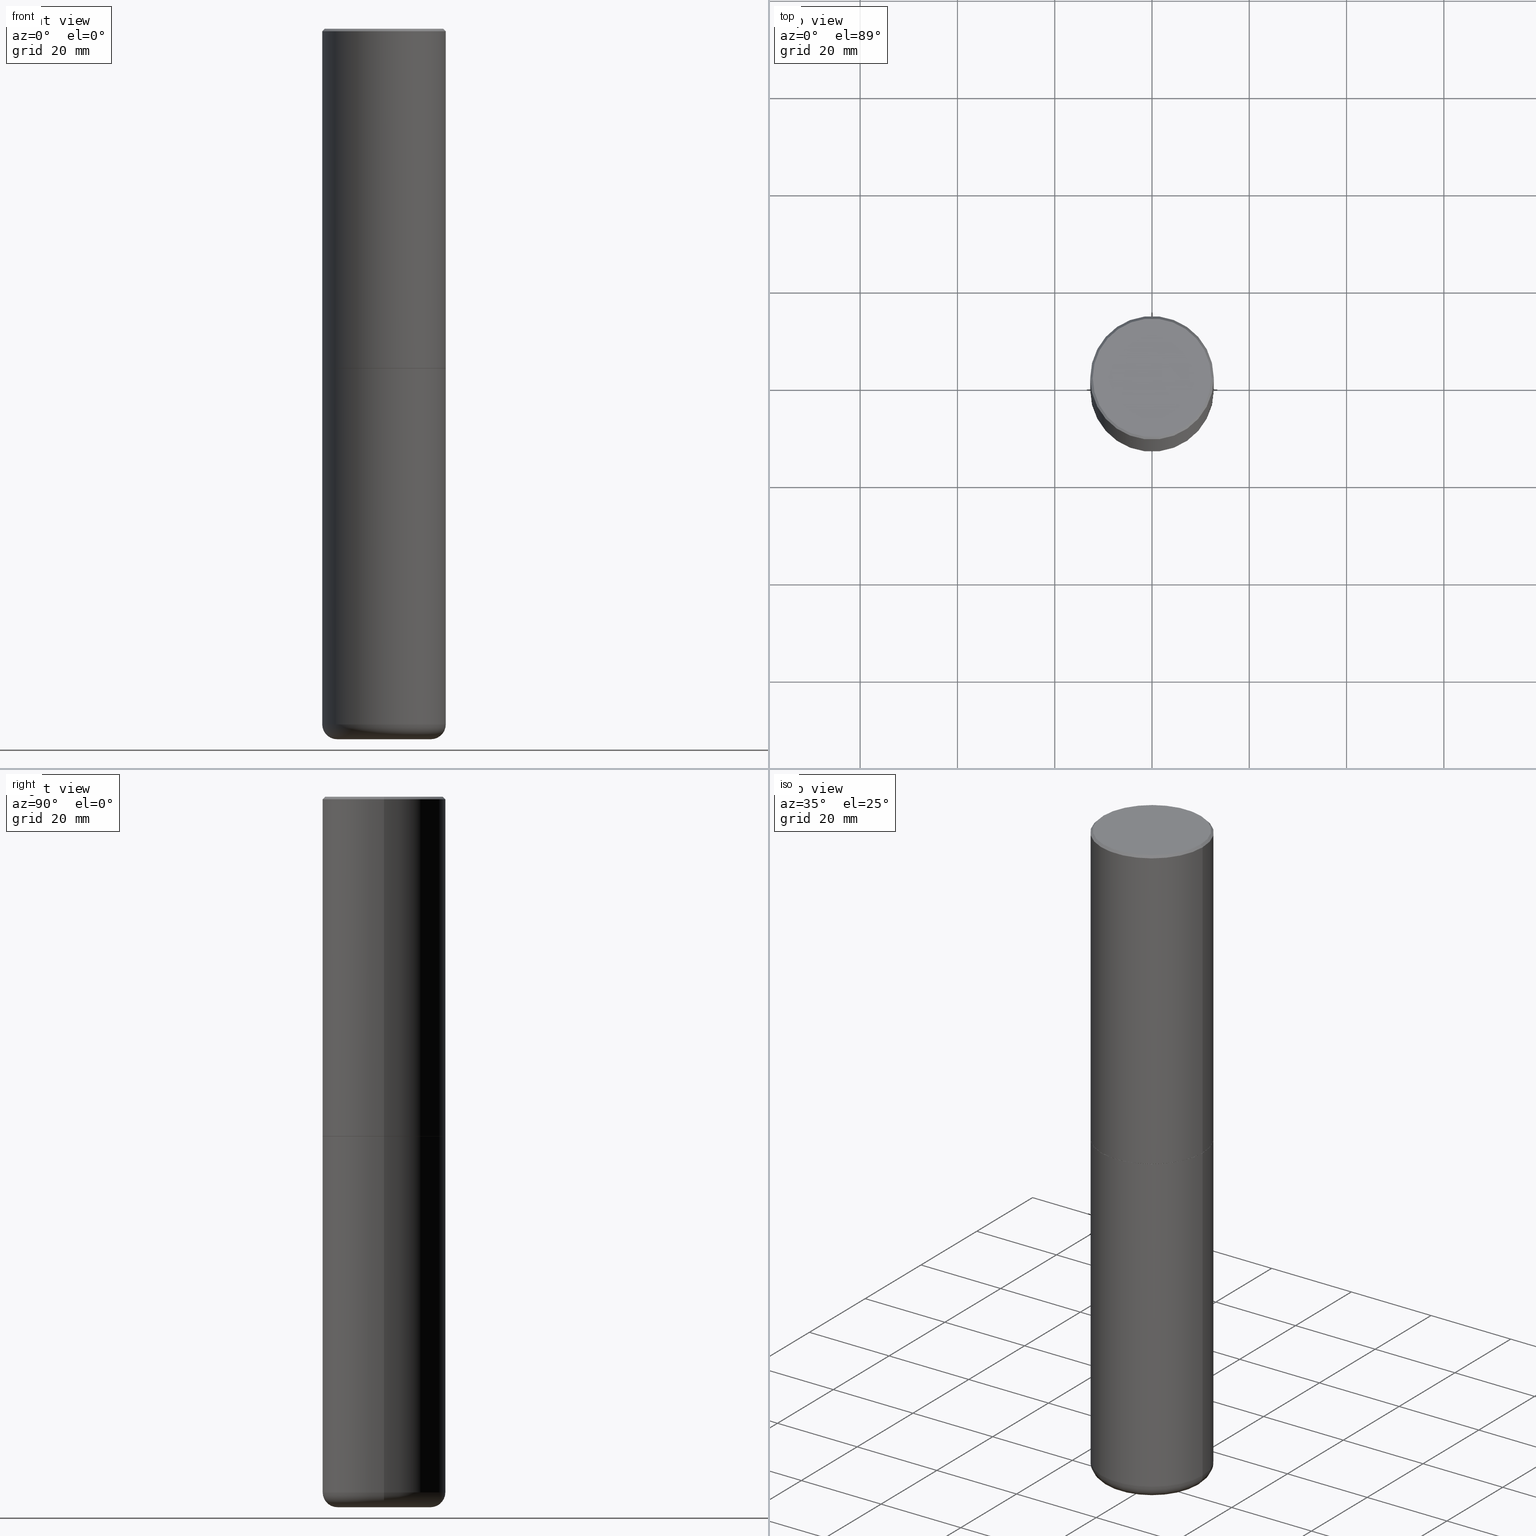
[diagram: canonical four-view strip — front | top / right | iso, engineering-drawing reading convention]
A machine part, canonical four-view strip (front | top / right | iso — engineering-drawing reading convention). The complete STEP part file that produces these views, byte-faithful:
ISO-10303-21;
HEADER;
FILE_DESCRIPTION (( 'STEP AP203' ),
    '1' );
FILE_NAME ('77320.STEP',
    '2024-03-06T17:04:59',
    ( '' ),
    ( '' ),
    'SwSTEP 2.0',
    'SolidWorks 2023',
    '' );
FILE_SCHEMA (( 'CONFIG_CONTROL_DESIGN' ));
ENDSEC;

DATA;
#1 = CARTESIAN_POINT ( 'NONE',  ( 6.725039217009123399E-29, -9.601573681818648281E-15, -2.749999999999999556 ) ) ;
#2 = CARTESIAN_POINT ( 'NONE',  ( 4.890937612370299433E-31, -6.982962677686328587E-17, -0.02000000000000010797 ) ) ;
#3 = CC_DESIGN_APPROVAL ( #186, ( #311 ) ) ;
#4 = LINE ( 'NONE', #364, #45 ) ;
#5 = PERSON_AND_ORGANIZATION ( #204, #298 ) ;
#6 = ORIENTED_EDGE ( 'NONE', *, *, #365, .F. ) ;
#7 = ORIENTED_EDGE ( 'NONE', *, *, #379, .T. ) ;
#8 = CONICAL_SURFACE ( 'NONE', #260, 0.5000000000000001110, 0.7853981633974458365 ) ;
#9 = APPROVAL_DATE_TIME ( #46, #186 ) ;
#10 = ORIENTED_EDGE ( 'NONE', *, *, #21, .F. ) ;
#11 = ORIENTED_EDGE ( 'NONE', *, *, #243, .T. ) ;
#12 = CALENDAR_DATE ( 2024, 6, 3 ) ;
#13 = PRODUCT ( '77320', '77320', '', ( #202 ) ) ;
#14 = ORIENTED_EDGE ( 'NONE', *, *, #243, .F. ) ;
#15 = CARTESIAN_POINT ( 'NONE',  ( 0.5000000000000000000, -1.309305502066178164E-14, -2.749999999999999556 ) ) ;
#16 = AXIS2_PLACEMENT_3D ( 'NONE', #389, #229, #190 ) ;
#17 = ORIENTED_EDGE ( 'NONE', *, *, #213, .F. ) ;
#18 = CARTESIAN_POINT ( 'NONE',  ( 6.725039217009123399E-29, -9.601573681818648281E-15, -2.749999999999999556 ) ) ;
#19 = APPROVAL_ROLE ( '' ) ;
#20 = CARTESIAN_POINT ( 'NONE',  ( -0.4799999999999999267, 3.386736898677839197E-15, 1.195183497227879609E-16 ) ) ;
#21 = EDGE_CURVE ( 'NONE', #48, #308, #146, .T. ) ;
#22 = AXIS2_PLACEMENT_3D ( 'NONE', #251, #51, #79 ) ;
#23 = VECTOR ( 'NONE', #32, 39.37007874015748143 ) ;
#24 = PERSON_AND_ORGANIZATION ( #204, #298 ) ;
#25 = FACE_OUTER_BOUND ( 'NONE', #166, .T. ) ;
#26 = EDGE_CURVE ( 'NONE', #78, #330, #108, .T. ) ;
#27 =( LENGTH_UNIT ( ) NAMED_UNIT ( * ) SI_UNIT ( $, .METRE. ) );
#28 = APPROVAL_STATUS ( 'not_yet_approved' ) ;
#29 = CARTESIAN_POINT ( 'NONE',  ( 0.5000000000000001110, -3.500078625662629868E-15, -0.02000000000000010797 ) ) ;
#30 =( NAMED_UNIT ( * ) PLANE_ANGLE_UNIT ( ) SI_UNIT ( $, .RADIAN. ) );
#31 = CARTESIAN_POINT ( 'NONE',  ( 0.5000000000000000000, -3.491481338843133355E-15, 2.438088387897967896E-29 ) ) ;
#32 = DIRECTION ( 'NONE',  ( -2.445468806185136877E-29, 3.491481338843145188E-15, 1.000000000000000000 ) ) ;
#33 = ADVANCED_FACE ( 'NONE', ( #380 ), #303, .T. ) ;
#34 = AXIS2_PLACEMENT_3D ( 'NONE', #295, #396, #70 ) ;
#35 = DIRECTION ( 'NONE',  ( -2.445468806185136597E-29, 3.491481338843145583E-15, 1.000000000000000000 ) ) ;
#36 = DIRECTION ( 'NONE',  ( 1.000000000000000000, -6.982962677686266711E-15, 0.000000000000000000 ) ) ;
#37 = DIRECTION ( 'NONE',  ( 2.445468806185136597E-29, -3.491481338843145583E-15, -1.000000000000000000 ) ) ;
#38 = CIRCLE ( 'NONE', #400, 0.1199999999999998845 ) ;
#39 = ORIENTED_EDGE ( 'NONE', *, *, #94, .T. ) ;
#40 = VERTEX_POINT ( 'NONE', #15 ) ;
#41 = EDGE_CURVE ( 'NONE', #330, #78, #196, .T. ) ;
#42 = AXIS2_PLACEMENT_3D ( 'NONE', #120, #198, #55 ) ;
#43 = AXIS2_PLACEMENT_3D ( 'NONE', #18, #410, #113 ) ;
#44 = ORIENTED_EDGE ( 'NONE', *, *, #201, .F. ) ;
#45 = VECTOR ( 'NONE', #164, 39.37007874015748143 ) ;
#46 = DATE_AND_TIME ( #367, #372 ) ;
#47 = EDGE_CURVE ( 'NONE', #244, #75, #161, .T. ) ;
#48 = VERTEX_POINT ( 'NONE', #20 ) ;
#49 = APPROVAL_ROLE ( '' ) ;
#50 = ORIENTED_EDGE ( 'NONE', *, *, #365, .T. ) ;
#51 = DIRECTION ( 'NONE',  ( -6.982962677686266711E-15, -1.000000000000000000, 3.491481338843145583E-15 ) ) ;
#52 = CIRCLE ( 'NONE', #16, 0.4999999999999999445 ) ;
#53 = DIRECTION ( 'NONE',  ( -2.445468806185136597E-29, 3.491481338843145583E-15, 1.000000000000000000 ) ) ;
#54 = PRODUCT_DEFINITION ( 'UNKNOWN', '', #359, #275 ) ;
#55 = DIRECTION ( 'NONE',  ( 1.000000000000000000, -6.982962677686269077E-15, 0.000000000000000000 ) ) ;
#56 = AXIS2_PLACEMENT_3D ( 'NONE', #2, #392, #264 ) ;
#57 = DIRECTION ( 'NONE',  ( 1.000000000000000000, -6.982962677686266711E-15, 4.874852205035277589E-29 ) ) ;
#58 = APPLICATION_CONTEXT ( 'configuration controlled 3d designs of mechanical parts and assemblies' ) ;
#59 = APPROVAL_ROLE ( '' ) ;
#60 = DIRECTION ( 'NONE',  ( 1.000000000000000000, -6.982962677686265922E-15, 0.000000000000000000 ) ) ;
#61 = LINE ( 'NONE', #384, #153 ) ;
#62 = DIRECTION ( 'NONE',  ( 0.000000000000000000, 0.000000000000000000, 1.000000000000000000 ) ) ;
#63 = DIRECTION ( 'NONE',  ( 2.438088387897960049E-29, -3.491481338843145188E-15, -1.000000000000000000 ) ) ;
#64 = DIRECTION ( 'NONE',  ( 1.000000000000000000, -6.982962677686266711E-15, 0.000000000000000000 ) ) ;
#65 = CARTESIAN_POINT ( 'NONE',  ( 1.376798937882231913E-28, -1.965703993768690642E-14, -5.629999999999999893 ) ) ;
#66 = AXIS2_PLACEMENT_3D ( 'NONE', #356, #385, #89 ) ;
#67 = AXIS2_PLACEMENT_3D ( 'NONE', #72, #270, #205 ) ;
#68 = CC_DESIGN_PERSON_AND_ORGANIZATION_ASSIGNMENT ( #221, #371, ( #13 ) ) ;
#69 = CARTESIAN_POINT ( 'NONE',  ( 6.725039217009123399E-29, -9.601573681818648281E-15, -2.749999999999999556 ) ) ;
#70 = DIRECTION ( 'NONE',  ( 1.000000000000000000, -6.982962677686266711E-15, 4.876176775795935793E-29 ) ) ;
#71 = PERSON_AND_ORGANIZATION ( #204, #298 ) ;
#72 = CARTESIAN_POINT ( 'NONE',  ( 0.000000000000000000, 0.000000000000000000, 0.000000000000000000 ) ) ;
#73 = TOROIDAL_SURFACE ( 'NONE', #381, 0.3799999999999999489, 0.1199999999999998845 ) ;
#74 = EDGE_CURVE ( 'NONE', #330, #220, #148, .T. ) ;
#75 = VERTEX_POINT ( 'NONE', #245 ) ;
#76 = DIRECTION ( 'NONE',  ( 1.000000000000000000, -6.982962677686265133E-15, 4.883557194083112340E-29 ) ) ;
#77 = EDGE_LOOP ( 'NONE', ( #138, #300, #6, #218 ) ) ;
#78 = VERTEX_POINT ( 'NONE', #252 ) ;
#79 = DIRECTION ( 'NONE',  ( 1.000000000000000000, -6.982962677686274599E-15, 0.000000000000000000 ) ) ;
#80 = AXIS2_PLACEMENT_3D ( 'NONE', #84, #53, #345 ) ;
#81 = AXIS2_PLACEMENT_3D ( 'NONE', #187, #258, #412 ) ;
#82 = ORIENTED_EDGE ( 'NONE', *, *, #26, .F. ) ;
#83 = ORIENTED_EDGE ( 'NONE', *, *, #194, .F. ) ;
#84 = CARTESIAN_POINT ( 'NONE',  ( 0.000000000000000000, 0.000000000000000000, 0.000000000000000000 ) ) ;
#85 = VECTOR ( 'NONE', #152, 39.37007874015748143 ) ;
#86 = PLANE ( 'NONE',  #402 ) ;
#87 = LENGTH_MEASURE_WITH_UNIT ( LENGTH_MEASURE( 0.02539999999999999897 ), #27 );
#88 = COORDINATED_UNIVERSAL_TIME_OFFSET ( 5, 0, .BEHIND. ) ;
#89 = DIRECTION ( 'NONE',  ( -1.000000000000000000, 6.982962677686265922E-15, -4.876176775795935793E-29 ) ) ;
#90 = FACE_OUTER_BOUND ( 'NONE', #273, .T. ) ;
#91 = DIRECTION ( 'NONE',  ( -1.000000000000000000, 7.105427357600997914E-15, 0.000000000000000000 ) ) ;
#92 = FACE_OUTER_BOUND ( 'NONE', #211, .T. ) ;
#93 = FACE_OUTER_BOUND ( 'NONE', #140, .T. ) ;
#94 = EDGE_CURVE ( 'NONE', #304, #75, #393, .T. ) ;
#95 = CIRCLE ( 'NONE', #325, 0.5000000000000000000 ) ;
#96 = CC_DESIGN_PERSON_AND_ORGANIZATION_ASSIGNMENT ( #323, #139, ( #359 ) ) ;
#97 = EDGE_LOOP ( 'NONE', ( #102, #397, #11, #302 ) ) ;
#98 = MANIFOLD_SOLID_BREP ( 'Body-Move/Copy2[2]', #234 ) ;
#99 = DIRECTION ( 'NONE',  ( 1.000000000000000000, -6.982962677686273021E-15, 0.000000000000000000 ) ) ;
#100 = TOROIDAL_SURFACE ( 'NONE', #279, 0.3799999999999999489, 0.1199999999999998845 ) ;
#101 = CIRCLE ( 'NONE', #413, 0.4799999999999999267 ) ;
#102 = ORIENTED_EDGE ( 'NONE', *, *, #145, .F. ) ;
#103 = EDGE_LOOP ( 'NONE', ( #401, #147, #377, #361 ) ) ;
#104 = EDGE_LOOP ( 'NONE', ( #212, #404 ) ) ;
#105 = EDGE_LOOP ( 'NONE', ( #177, #144, #39, #370 ) ) ;
#106 = DIRECTION ( 'NONE',  ( 1.000000000000000000, -6.982962677686269077E-15, 0.000000000000000000 ) ) ;
#107 = DATE_AND_TIME ( #12, #109 ) ;
#108 = CIRCLE ( 'NONE', #149, 0.4989999999999999991 ) ;
#109 = LOCAL_TIME ( 12, 4, 59.00000000000000000, #88 ) ;
#110 = ORIENTED_EDGE ( 'NONE', *, *, #354, .F. ) ;
#111 = CARTESIAN_POINT ( 'NONE',  ( 1.376798937882231913E-28, -1.965703993768690642E-14, -5.629999999999999893 ) ) ;
#112 = SHAPE_DEFINITION_REPRESENTATION ( #249, #123 ) ;
#113 = DIRECTION ( 'NONE',  ( 1.000000000000000000, -6.982962677686265922E-15, 4.876176775795935793E-29 ) ) ;
#114 = ADVANCED_FACE ( 'NONE', ( #178 ), #307, .F. ) ;
#115 = ORIENTED_EDGE ( 'NONE', *, *, #344, .T. ) ;
#116 = AXIS2_PLACEMENT_3D ( 'NONE', #231, #63, #163 ) ;
#117 = CC_DESIGN_APPROVAL ( #137, ( #54 ) ) ;
#118 = DIRECTION ( 'NONE',  ( -2.445468806185136597E-29, 3.491481338843145583E-15, 1.000000000000000000 ) ) ;
#119 = EDGE_CURVE ( 'NONE', #171, #304, #134, .T. ) ;
#120 = CARTESIAN_POINT ( 'NONE',  ( 6.725039217009123399E-29, -9.601573681818648281E-15, -2.749999999999999556 ) ) ;
#121 = CARTESIAN_POINT ( 'NONE',  ( 0.5000000000000003331, -1.308956353932294179E-14, -2.748999999999999666 ) ) ;
#122 = CC_DESIGN_PERSON_AND_ORGANIZATION_ASSIGNMENT ( #71, #207, ( #359 ) ) ;
#123 = ADVANCED_BREP_SHAPE_REPRESENTATION ( '77320', ( #253, #98, #142 ), #288 ) ;
#124 = APPLICATION_CONTEXT ( 'configuration controlled 3d designs of mechanical parts and assemblies' ) ;
#125 = CYLINDRICAL_SURFACE ( 'NONE', #34, 0.5000000000000002220 ) ;
#126 = CARTESIAN_POINT ( 'NONE',  ( 6.725039217009123399E-29, -9.601573681818648281E-15, -2.749999999999999556 ) ) ;
#127 = CARTESIAN_POINT ( 'NONE',  ( -0.5000000000000003331, -1.281242234827830793E-15, -2.748999999999999666 ) ) ;
#128 = LINE ( 'NONE', #31, #349 ) ;
#129 = PERSON_AND_ORGANIZATION ( #204, #298 ) ;
#130 = LINE ( 'NONE', #265, #206 ) ;
#131 = DATE_AND_TIME ( #283, #155 ) ;
#132 = ADVANCED_FACE ( 'NONE', ( #25 ), #282, .F. ) ;
#133 = UNCERTAINTY_MEASURE_WITH_UNIT (LENGTH_MEASURE( 1.000000000000000082E-05 ), #225, 'distance_accuracy_value', 'NONE');
#134 = CIRCLE ( 'NONE', #310, 0.3799999999999999489 ) ;
#135 = DIRECTION ( 'NONE',  ( -2.445468806185136877E-29, 3.491481338843145188E-15, 1.000000000000000000 ) ) ;
#136 = APPROVAL_PERSON_ORGANIZATION ( #24, #186, #49 ) ;
#137 = APPROVAL ( #405, 'UNSPECIFIED' ) ;
#138 = ORIENTED_EDGE ( 'NONE', *, *, #26, .T. ) ;
#139 = PERSON_AND_ORGANIZATION_ROLE ( 'design_supplier' ) ;
#140 = EDGE_LOOP ( 'NONE', ( #328, #7 ) ) ;
#141 = ORIENTED_EDGE ( 'NONE', *, *, #299, .F. ) ;
#142 = AXIS2_PLACEMENT_3D ( 'NONE', #352, #62, #395 ) ;
#143 = ORIENTED_EDGE ( 'NONE', *, *, #299, .T. ) ;
#144 = ORIENTED_EDGE ( 'NONE', *, *, #119, .T. ) ;
#145 = EDGE_CURVE ( 'NONE', #244, #403, #61, .T. ) ;
#146 = LINE ( 'NONE', #183, #254 ) ;
#147 = ORIENTED_EDGE ( 'NONE', *, *, #156, .T. ) ;
#148 = LINE ( 'NONE', #214, #85 ) ;
#149 = AXIS2_PLACEMENT_3D ( 'NONE', #276, #406, #223 ) ;
#150 = AXIS2_PLACEMENT_3D ( 'NONE', #167, #322, #99 ) ;
#151 = ADVANCED_FACE ( 'NONE', ( #90 ), #262, .T. ) ;
#152 = DIRECTION ( 'NONE',  ( -0.7071067811867406405, 7.493145998871051513E-15, 0.7071067811863543939 ) ) ;
#153 = VECTOR ( 'NONE', #230, 39.37007874015748143 ) ;
#154 = COORDINATED_UNIVERSAL_TIME_OFFSET ( 5, 0, .BEHIND. ) ;
#155 = LOCAL_TIME ( 12, 4, 59.00000000000000000, #154 ) ;
#156 = EDGE_CURVE ( 'NONE', #171, #244, #38, .T. ) ;
#157 = FACE_OUTER_BOUND ( 'NONE', #331, .T. ) ;
#158 = DIRECTION ( 'NONE',  ( -2.445468806185136597E-29, 3.491481338843145583E-15, 1.000000000000000000 ) ) ;
#159 =( NAMED_UNIT ( * ) SI_UNIT ( $, .STERADIAN. ) SOLID_ANGLE_UNIT ( ) );
#160 = CARTESIAN_POINT ( 'NONE',  ( -0.4999999999999998335, -1.610432625888640549E-14, -5.629999999999999893 ) ) ;
#161 = CIRCLE ( 'NONE', #417, 0.4999999999999999445 ) ;
#162 = AXIS2_PLACEMENT_3D ( 'NONE', #1, #192, #346 ) ;
#163 = DIRECTION ( 'NONE',  ( -1.000000000000000000, 6.982962677686265922E-15, -4.876176775795935793E-29 ) ) ;
#164 = DIRECTION ( 'NONE',  ( 0.7071067811865457964, -7.319954787623249734E-15, -0.7071067811865492381 ) ) ;
#165 = CARTESIAN_POINT ( 'NONE',  ( 1.376798937882231913E-28, -1.965703993768690642E-14, -5.629999999999999893 ) ) ;
#166 = EDGE_LOOP ( 'NONE', ( #168, #250 ) ) ;
#167 = CARTESIAN_POINT ( 'NONE',  ( 1.406144563556453543E-28, -2.007601769834808621E-14, -5.750000000000000000 ) ) ;
#168 = ORIENTED_EDGE ( 'NONE', *, *, #194, .T. ) ;
#169 = AXIS2_PLACEMENT_3D ( 'NONE', #195, #291, #60 ) ;
#170 = ADVANCED_FACE ( 'NONE', ( #93 ), #259, .F. ) ;
#171 = VERTEX_POINT ( 'NONE', #315 ) ;
#172 = COORDINATED_UNIVERSAL_TIME_OFFSET ( 5, 0, .BEHIND. ) ;
#173 = ORIENTED_EDGE ( 'NONE', *, *, #238, .F. ) ;
#174 = ADVANCED_FACE ( 'NONE', ( #348 ), #332, .T. ) ;
#175 = CC_DESIGN_PERSON_AND_ORGANIZATION_ASSIGNMENT ( #129, #227, ( #54 ) ) ;
#176 = DATE_TIME_ROLE ( 'classification_date' ) ;
#177 = ORIENTED_EDGE ( 'NONE', *, *, #156, .F. ) ;
#178 = FACE_OUTER_BOUND ( 'NONE', #239, .T. ) ;
#179 = CIRCLE ( 'NONE', #358, 0.5000000000000003331 ) ;
#180 = LOCAL_TIME ( 12, 4, 59.00000000000000000, #247 ) ;
#181 = EDGE_CURVE ( 'NONE', #220, #376, #179, .T. ) ;
#182 = CARTESIAN_POINT ( 'NONE',  ( 1.406144563556453543E-28, -2.007601769834808621E-14, -5.750000000000000000 ) ) ;
#183 = CARTESIAN_POINT ( 'NONE',  ( -0.5000000000000001110, 3.421651712066270452E-15, -0.02000000000000010797 ) ) ;
#184 = ORIENTED_EDGE ( 'NONE', *, *, #375, .F. ) ;
#185 = COORDINATED_UNIVERSAL_TIME_OFFSET ( 5, 0, .BEHIND. ) ;
#186 = APPROVAL ( #28, 'UNSPECIFIED' ) ;
#187 = CARTESIAN_POINT ( 'NONE',  ( -2.922783960138615261E-45, 4.172960877065252270E-31, 1.195183497228115035E-16 ) ) ;
#188 = ADVANCED_FACE ( 'NONE', ( #319 ), #100, .T. ) ;
#189 = AXIS2_PLACEMENT_3D ( 'NONE', #314, #321, #232 ) ;
#190 = DIRECTION ( 'NONE',  ( 1.000000000000000000, -6.982962677686263555E-15, 0.000000000000000000 ) ) ;
#191 = DIRECTION ( 'NONE',  ( -1.000000000000000000, 6.982962677686265922E-15, -4.876176775795935793E-29 ) ) ;
#192 = DIRECTION ( 'NONE',  ( -2.445468806185136597E-29, 3.491481338843145583E-15, 1.000000000000000000 ) ) ;
#193 = DATE_TIME_ROLE ( 'creation_date' ) ;
#194 = EDGE_CURVE ( 'NONE', #48, #374, #101, .T. ) ;
#195 = CARTESIAN_POINT ( 'NONE',  ( 6.722593748202938917E-29, -9.598082200479805274E-15, -2.748999999999999666 ) ) ;
#196 = CIRCLE ( 'NONE', #306, 0.4989999999999999991 ) ;
#197 = AXIS2_PLACEMENT_3D ( 'NONE', #388, #158, #289 ) ;
#198 = DIRECTION ( 'NONE',  ( -2.445468806185136597E-29, 3.491481338843145583E-15, 1.000000000000000000 ) ) ;
#199 = DIRECTION ( 'NONE',  ( -2.445468806185136597E-29, 3.491481338843145583E-15, 1.000000000000000000 ) ) ;
#200 = CARTESIAN_POINT ( 'NONE',  ( 0.3799999999999999489, -2.272954351586886946E-14, -5.750000000000000000 ) ) ;
#201 = EDGE_CURVE ( 'NONE', #220, #308, #415, .T. ) ;
#202 = MECHANICAL_CONTEXT ( 'NONE', #58, 'mechanical' ) ;
#203 = APPROVAL ( #256, 'UNSPECIFIED' ) ;
#204 = PERSON ( 'UNSPECIFIED', 'UNSPECIFIED', 'UNSPECIFIED', ('UNSPECIFIED'), ('UNSPECIFIED'), ('UNSPECIFIED') ) ;
#205 = DIRECTION ( 'NONE',  ( 1.000000000000000000, -6.982962677686266711E-15, 4.876176775795935793E-29 ) ) ;
#206 = VECTOR ( 'NONE', #135, 39.37007874015748143 ) ;
#207 = PERSON_AND_ORGANIZATION_ROLE ( 'creator' ) ;
#208 = EDGE_LOOP ( 'NONE', ( #173, #336, #366, #10 ) ) ;
#209 = LINE ( 'NONE', #355, #228 ) ;
#210 = ORIENTED_EDGE ( 'NONE', *, *, #181, .F. ) ;
#211 = EDGE_LOOP ( 'NONE', ( #246, #83, #368, #347 ) ) ;
#212 = ORIENTED_EDGE ( 'NONE', *, *, #313, .F. ) ;
#213 = EDGE_CURVE ( 'NONE', #271, #308, #387, .T. ) ;
#214 = CARTESIAN_POINT ( 'NONE',  ( -0.4989999999999999991, -6.055965430375748360E-15, -2.749999999999999556 ) ) ;
#215 = CIRCLE ( 'NONE', #169, 0.5000000000000003331 ) ;
#216 = ORIENTED_EDGE ( 'NONE', *, *, #181, .T. ) ;
#217 = CALENDAR_DATE ( 2024, 6, 3 ) ;
#218 = ORIENTED_EDGE ( 'NONE', *, *, #344, .F. ) ;
#219 = ADVANCED_FACE ( 'NONE', ( #157 ), #235, .T. ) ;
#220 = VERTEX_POINT ( 'NONE', #127 ) ;
#221 = PERSON_AND_ORGANIZATION ( #204, #298 ) ;
#222 = DIRECTION ( 'NONE',  ( -2.445468806185136597E-29, 3.491481338843145583E-15, 1.000000000000000000 ) ) ;
#223 = DIRECTION ( 'NONE',  ( 1.000000000000000000, -6.982962677686269077E-15, 0.000000000000000000 ) ) ;
#224 = CARTESIAN_POINT ( 'NONE',  ( -0.5000000000000002220, 3.552713678800502507E-15, -2.459467545127454012E-29 ) ) ;
#225 =( CONVERSION_BASED_UNIT ( 'INCH', #87 ) LENGTH_UNIT ( ) NAMED_UNIT ( #399 ) );
#226 = DIRECTION ( 'NONE',  ( 1.000000000000000000, -6.982962677686265922E-15, 0.000000000000000000 ) ) ;
#227 = PERSON_AND_ORGANIZATION_ROLE ( 'creator' ) ;
#228 = VECTOR ( 'NONE', #290, 39.37007874015748143 ) ;
#229 = DIRECTION ( 'NONE',  ( -2.445468806185136597E-29, 3.491481338843145583E-15, 1.000000000000000000 ) ) ;
#230 = DIRECTION ( 'NONE',  ( -2.445468806185136877E-29, 3.491481338843145188E-15, 1.000000000000000000 ) ) ;
#231 = CARTESIAN_POINT ( 'NONE',  ( 6.725039217009123399E-29, -9.601573681818648281E-15, -2.749999999999999556 ) ) ;
#232 = DIRECTION ( 'NONE',  ( 1.000000000000000000, -6.982962677686265922E-15, 0.000000000000000000 ) ) ;
#233 = CARTESIAN_POINT ( 'NONE',  ( -2.922783960138615261E-45, 4.172960877065252270E-31, 1.195183497228115035E-16 ) ) ;
#234 = CLOSED_SHELL ( 'NONE', ( #174, #285, #334, #369, #33, #219, #114, #132 ) ) ;
#235 = CONICAL_SURFACE ( 'NONE', #162, 0.4989999999999999991, 0.7853981633977213939 ) ;
#236 = PRODUCT_RELATED_PRODUCT_CATEGORY ( 'detail', '', ( #13 ) ) ;
#237 = CYLINDRICAL_SURFACE ( 'NONE', #67, 0.5000000000000000000 ) ;
#238 = EDGE_CURVE ( 'NONE', #374, #48, #267, .T. ) ;
#239 = EDGE_LOOP ( 'NONE', ( #82, #340 ) ) ;
#240 = AXIS2_PLACEMENT_3D ( 'NONE', #316, #118, #351 ) ;
#241 = DIRECTION ( 'NONE',  ( -2.445468806185136597E-29, 3.491481338843145583E-15, 1.000000000000000000 ) ) ;
#242 = CC_DESIGN_SECURITY_CLASSIFICATION ( #311, ( #359 ) ) ;
#243 = EDGE_CURVE ( 'NONE', #75, #40, #128, .T. ) ;
#244 = VERTEX_POINT ( 'NONE', #160 ) ;
#245 = CARTESIAN_POINT ( 'NONE',  ( 0.4999999999999998335, -2.314852127653003978E-14, -5.629999999999999893 ) ) ;
#246 = ORIENTED_EDGE ( 'NONE', *, *, #320, .F. ) ;
#247 = COORDINATED_UNIVERSAL_TIME_OFFSET ( 5, 0, .BEHIND. ) ;
#248 = ADVANCED_FACE ( 'NONE', ( #383 ), #86, .T. ) ;
#249 = PRODUCT_DEFINITION_SHAPE ( 'NONE', 'NONE',  #54 ) ;
#250 = ORIENTED_EDGE ( 'NONE', *, *, #238, .T. ) ;
#251 = CARTESIAN_POINT ( 'NONE',  ( 0.3799999999999999489, -2.231056575520768651E-14, -5.629999999999999893 ) ) ;
#252 = CARTESIAN_POINT ( 'NONE',  ( 0.4989999999999999991, -1.308607205798409720E-14, -2.749999999999999556 ) ) ;
#253 = MANIFOLD_SOLID_BREP ( 'Body-Move/Copy2[1]', #386 ) ;
#254 = VECTOR ( 'NONE', #339, 39.37007874015748143 ) ;
#255 = DIRECTION ( 'NONE',  ( -2.445468806185136877E-29, 3.491481338843145188E-15, 1.000000000000000000 ) ) ;
#256 = APPROVAL_STATUS ( 'not_yet_approved' ) ;
#257 = CARTESIAN_POINT ( 'NONE',  ( -0.5000000000000000000, -1.107659313095227642E-14, -2.749999999999999556 ) ) ;
#258 = DIRECTION ( 'NONE',  ( -2.445468806185136597E-29, 3.491481338843145583E-15, 1.000000000000000000 ) ) ;
#259 = PLANE ( 'NONE',  #116 ) ;
#260 = AXIS2_PLACEMENT_3D ( 'NONE', #292, #37, #398 ) ;
#261 = APPLICATION_PROTOCOL_DEFINITION ( 'international standard', 'config_control_design', 1994, #58 ) ;
#262 = CYLINDRICAL_SURFACE ( 'NONE', #240, 0.5000000000000000000 ) ;
#263 = DIRECTION ( 'NONE',  ( 1.000000000000000000, -6.982962677686273021E-15, 0.000000000000000000 ) ) ;
#264 = DIRECTION ( 'NONE',  ( -1.000000000000000000, 6.982962677686265922E-15, 0.000000000000000000 ) ) ;
#265 = CARTESIAN_POINT ( 'NONE',  ( 0.5000000000000002220, -3.491481338843134933E-15, 2.438088387897969017E-29 ) ) ;
#266 = APPROVAL_DATE_TIME ( #131, #203 ) ;
#267 = CIRCLE ( 'NONE', #81, 0.4799999999999999267 ) ;
#268 = FACE_OUTER_BOUND ( 'NONE', #97, .T. ) ;
#269 = EDGE_LOOP ( 'NONE', ( #44, #216, #143, #184 ) ) ;
#270 = DIRECTION ( 'NONE',  ( -2.445468806185136597E-29, 3.491481338843145583E-15, 1.000000000000000000 ) ) ;
#271 = VERTEX_POINT ( 'NONE', #29 ) ;
#272 = CIRCLE ( 'NONE', #150, 0.3799999999999999489 ) ;
#273 = EDGE_LOOP ( 'NONE', ( #362, #297, #110, #14 ) ) ;
#274 = EDGE_LOOP ( 'NONE', ( #50, #408, #17, #141 ) ) ;
#275 = DESIGN_CONTEXT ( 'detailed design', #124, 'design' ) ;
#276 = CARTESIAN_POINT ( 'NONE',  ( 6.725039217009123399E-29, -9.601573681818648281E-15, -2.749999999999999556 ) ) ;
#277 = ORIENTED_EDGE ( 'NONE', *, *, #74, .F. ) ;
#278 = DIRECTION ( 'NONE',  ( -2.445468806185136597E-29, 3.491481338843145583E-15, 1.000000000000000000 ) ) ;
#279 = AXIS2_PLACEMENT_3D ( 'NONE', #65, #278, #414 ) ;
#280 = APPROVAL_PERSON_ORGANIZATION ( #391, #203, #59 ) ;
#281 = CONICAL_SURFACE ( 'NONE', #56, 0.5000000000000001110, 0.7853981633974458365 ) ;
#282 = PLANE ( 'NONE',  #66 ) ;
#283 = CALENDAR_DATE ( 2024, 6, 3 ) ;
#284 = DIRECTION ( 'NONE',  ( -2.445468806185136597E-29, 3.491481338843145583E-15, 1.000000000000000000 ) ) ;
#285 = ADVANCED_FACE ( 'NONE', ( #286 ), #125, .T. ) ;
#286 = FACE_OUTER_BOUND ( 'NONE', #274, .T. ) ;
#287 = CARTESIAN_POINT ( 'NONE',  ( 1.406144563556453543E-28, -2.007601769834808621E-14, -5.750000000000000000 ) ) ;
#288 =( GEOMETRIC_REPRESENTATION_CONTEXT ( 3 ) GLOBAL_UNCERTAINTY_ASSIGNED_CONTEXT ( ( #133 ) ) GLOBAL_UNIT_ASSIGNED_CONTEXT ( ( #225, #30, #159 ) ) REPRESENTATION_CONTEXT ( 'NONE', 'WORKASPACE' ) );
#289 = DIRECTION ( 'NONE',  ( 1.000000000000000000, -6.982962677686265922E-15, 0.000000000000000000 ) ) ;
#290 = DIRECTION ( 'NONE',  ( 0.7071067811867406405, -2.468850131084279700E-15, 0.7071067811863543939 ) ) ;
#291 = DIRECTION ( 'NONE',  ( -2.445468806185136597E-29, 3.491481338843145583E-15, 1.000000000000000000 ) ) ;
#292 = CARTESIAN_POINT ( 'NONE',  ( 4.890937612370299433E-31, -6.982962677686328587E-17, -0.02000000000000010797 ) ) ;
#293 = AXIS2_PLACEMENT_3D ( 'NONE', #69, #199, #36 ) ;
#294 = FACE_OUTER_BOUND ( 'NONE', #208, .T. ) ;
#295 = CARTESIAN_POINT ( 'NONE',  ( 0.000000000000000000, 0.000000000000000000, 0.000000000000000000 ) ) ;
#296 = ORIENTED_EDGE ( 'NONE', *, *, #41, .T. ) ;
#297 = ORIENTED_EDGE ( 'NONE', *, *, #145, .T. ) ;
#298 = ORGANIZATION ( 'UNSPECIFIED', 'UNSPECIFIED', '' ) ;
#299 = EDGE_CURVE ( 'NONE', #376, #271, #130, .T. ) ;
#300 = ORIENTED_EDGE ( 'NONE', *, *, #74, .T. ) ;
#301 = PERSON_AND_ORGANIZATION ( #204, #298 ) ;
#302 = ORIENTED_EDGE ( 'NONE', *, *, #379, .F. ) ;
#303 = CYLINDRICAL_SURFACE ( 'NONE', #80, 0.5000000000000002220 ) ;
#304 = VERTEX_POINT ( 'NONE', #200 ) ;
#305 = CC_DESIGN_DATE_AND_TIME_ASSIGNMENT ( #312, #193, ( #54 ) ) ;
#306 = AXIS2_PLACEMENT_3D ( 'NONE', #342, #343, #106 ) ;
#307 = PLANE ( 'NONE',  #43 ) ;
#308 = VERTEX_POINT ( 'NONE', #326 ) ;
#309 = DIRECTION ( 'NONE',  ( 2.438088387897960049E-29, -3.491481338843145188E-15, -1.000000000000000000 ) ) ;
#310 = AXIS2_PLACEMENT_3D ( 'NONE', #182, #222, #263 ) ;
#311 = SECURITY_CLASSIFICATION ( '', '', #327 ) ;
#312 = DATE_AND_TIME ( #350, #418 ) ;
#313 = EDGE_CURVE ( 'NONE', #304, #171, #272, .T. ) ;
#314 = CARTESIAN_POINT ( 'NONE',  ( 4.890937612370299433E-31, -6.982962677686328587E-17, -0.02000000000000010797 ) ) ;
#315 = CARTESIAN_POINT ( 'NONE',  ( -0.3799999999999999489, -1.674014078067305588E-14, -5.750000000000000000 ) ) ;
#316 = CARTESIAN_POINT ( 'NONE',  ( 0.000000000000000000, 0.000000000000000000, 0.000000000000000000 ) ) ;
#317 = DIRECTION ( 'NONE',  ( -2.445468806185136597E-29, 3.491481338843145583E-15, 1.000000000000000000 ) ) ;
#318 = CIRCLE ( 'NONE', #293, 0.5000000000000000000 ) ;
#319 = FACE_OUTER_BOUND ( 'NONE', #105, .T. ) ;
#320 = EDGE_CURVE ( 'NONE', #374, #271, #4, .T. ) ;
#321 = DIRECTION ( 'NONE',  ( -2.445468806185136597E-29, 3.491481338843145583E-15, 1.000000000000000000 ) ) ;
#322 = DIRECTION ( 'NONE',  ( -2.445468806185136597E-29, 3.491481338843145583E-15, 1.000000000000000000 ) ) ;
#323 = PERSON_AND_ORGANIZATION ( #204, #298 ) ;
#324 = CARTESIAN_POINT ( 'NONE',  ( -0.4989999999999999991, -6.050666976027525169E-15, -2.749999999999999556 ) ) ;
#325 = AXIS2_PLACEMENT_3D ( 'NONE', #126, #284, #64 ) ;
#326 = CARTESIAN_POINT ( 'NONE',  ( -0.5000000000000001110, 3.421651712066270452E-15, -0.02000000000000010797 ) ) ;
#327 = SECURITY_CLASSIFICATION_LEVEL ( 'unclassified' ) ;
#328 = ORIENTED_EDGE ( 'NONE', *, *, #354, .T. ) ;
#329 = FACE_OUTER_BOUND ( 'NONE', #103, .T. ) ;
#330 = VERTEX_POINT ( 'NONE', #324 ) ;
#331 = EDGE_LOOP ( 'NONE', ( #277, #296, #115, #210 ) ) ;
#332 = CONICAL_SURFACE ( 'NONE', #42, 0.4989999999999999991, 0.7853981633977213939 ) ;
#333 = CIRCLE ( 'NONE', #189, 0.5000000000000001110 ) ;
#334 = ADVANCED_FACE ( 'NONE', ( #294 ), #8, .T. ) ;
#335 = ADVANCED_FACE ( 'NONE', ( #268 ), #237, .T. ) ;
#336 = ORIENTED_EDGE ( 'NONE', *, *, #320, .T. ) ;
#337 = APPROVAL_DATE_TIME ( #409, #137 ) ;
#338 = ADVANCED_FACE ( 'NONE', ( #329 ), #73, .T. ) ;
#339 = DIRECTION ( 'NONE',  ( -0.7071067811865457964, 2.468850131082238917E-15, -0.7071067811865492381 ) ) ;
#340 = ORIENTED_EDGE ( 'NONE', *, *, #41, .F. ) ;
#341 = CC_DESIGN_PERSON_AND_ORGANIZATION_ASSIGNMENT ( #5, #407, ( #311 ) ) ;
#342 = CARTESIAN_POINT ( 'NONE',  ( 6.725039217009123399E-29, -9.601573681818648281E-15, -2.749999999999999556 ) ) ;
#343 = DIRECTION ( 'NONE',  ( -2.445468806185136597E-29, 3.491481338843145583E-15, 1.000000000000000000 ) ) ;
#344 = EDGE_CURVE ( 'NONE', #78, #376, #209, .T. ) ;
#345 = DIRECTION ( 'NONE',  ( 1.000000000000000000, -6.982962677686266711E-15, 4.876176775795935793E-29 ) ) ;
#346 = DIRECTION ( 'NONE',  ( 1.000000000000000000, -6.982962677686269077E-15, 0.000000000000000000 ) ) ;
#347 = ORIENTED_EDGE ( 'NONE', *, *, #375, .T. ) ;
#348 = FACE_OUTER_BOUND ( 'NONE', #77, .T. ) ;
#349 = VECTOR ( 'NONE', #255, 39.37007874015748143 ) ;
#350 = CALENDAR_DATE ( 2024, 6, 3 ) ;
#351 = DIRECTION ( 'NONE',  ( 1.000000000000000000, -6.982962677686266711E-15, 4.876176775795935793E-29 ) ) ;
#352 = CARTESIAN_POINT ( 'NONE',  ( 0.000000000000000000, 0.000000000000000000, 0.000000000000000000 ) ) ;
#353 = CARTESIAN_POINT ( 'NONE',  ( 6.722593748202938917E-29, -9.598082200479805274E-15, -2.748999999999999666 ) ) ;
#354 = EDGE_CURVE ( 'NONE', #40, #403, #95, .T. ) ;
#355 = CARTESIAN_POINT ( 'NONE',  ( 0.4989999999999999991, -1.308607205798409720E-14, -2.749999999999999556 ) ) ;
#356 = CARTESIAN_POINT ( 'NONE',  ( 3.351822085289407153E-15, 0.4799999999999999267, -1.616151867783303914E-15 ) ) ;
#357 = EDGE_CURVE ( 'NONE', #75, #244, #52, .T. ) ;
#358 = AXIS2_PLACEMENT_3D ( 'NONE', #353, #35, #226 ) ;
#359 = PRODUCT_DEFINITION_FORMATION_WITH_SPECIFIED_SOURCE ( 'ANY', '', #13, .NOT_KNOWN. ) ;
#360 = CARTESIAN_POINT ( 'NONE',  ( 0.4799999999999999267, -3.396558832296482099E-15, 1.195183497228351200E-16 ) ) ;
#361 = ORIENTED_EDGE ( 'NONE', *, *, #94, .F. ) ;
#362 = ORIENTED_EDGE ( 'NONE', *, *, #357, .T. ) ;
#363 = APPROVAL_PERSON_ORGANIZATION ( #301, #137, #19 ) ;
#364 = CARTESIAN_POINT ( 'NONE',  ( 0.5000000000000001110, -3.500078625662629868E-15, -0.02000000000000010797 ) ) ;
#365 = EDGE_CURVE ( 'NONE', #376, #220, #215, .T. ) ;
#366 = ORIENTED_EDGE ( 'NONE', *, *, #213, .T. ) ;
#367 = CALENDAR_DATE ( 2024, 6, 3 ) ;
#368 = ORIENTED_EDGE ( 'NONE', *, *, #21, .T. ) ;
#369 = ADVANCED_FACE ( 'NONE', ( #92 ), #281, .T. ) ;
#370 = ORIENTED_EDGE ( 'NONE', *, *, #47, .F. ) ;
#371 = PERSON_AND_ORGANIZATION_ROLE ( 'design_owner' ) ;
#372 = LOCAL_TIME ( 12, 4, 59.00000000000000000, #172 ) ;
#373 = DIRECTION ( 'NONE',  ( 1.000000000000000000, -6.982962677686263555E-15, 0.000000000000000000 ) ) ;
#374 = VERTEX_POINT ( 'NONE', #360 ) ;
#375 = EDGE_CURVE ( 'NONE', #308, #271, #333, .T. ) ;
#376 = VERTEX_POINT ( 'NONE', #121 ) ;
#377 = ORIENTED_EDGE ( 'NONE', *, *, #357, .F. ) ;
#378 = DIRECTION ( 'NONE',  ( -2.445468806185136597E-29, 3.491481338843145583E-15, 1.000000000000000000 ) ) ;
#379 = EDGE_CURVE ( 'NONE', #403, #40, #318, .T. ) ;
#380 = FACE_OUTER_BOUND ( 'NONE', #269, .T. ) ;
#381 = AXIS2_PLACEMENT_3D ( 'NONE', #165, #241, #76 ) ;
#382 = APPLICATION_PROTOCOL_DEFINITION ( 'international standard', 'config_control_design', 1994, #124 ) ;
#383 = FACE_OUTER_BOUND ( 'NONE', #104, .T. ) ;
#384 = CARTESIAN_POINT ( 'NONE',  ( -0.5000000000000000000, 3.552713678800500929E-15, -2.459467545127452891E-29 ) ) ;
#385 = DIRECTION ( 'NONE',  ( 2.438088387897960049E-29, -3.491481338843145188E-15, -1.000000000000000000 ) ) ;
#386 = CLOSED_SHELL ( 'NONE', ( #151, #338, #170, #335, #188, #248 ) ) ;
#387 = CIRCLE ( 'NONE', #197, 0.5000000000000001110 ) ;
#388 = CARTESIAN_POINT ( 'NONE',  ( 4.890937612370299433E-31, -6.982962677686328587E-17, -0.02000000000000010797 ) ) ;
#389 = CARTESIAN_POINT ( 'NONE',  ( 1.376798937882231913E-28, -1.965703993768690642E-14, -5.629999999999999893 ) ) ;
#390 = DIRECTION ( 'NONE',  ( 7.105427357601001859E-15, 1.000000000000000000, -3.491481338843145583E-15 ) ) ;
#391 = PERSON_AND_ORGANIZATION ( #204, #298 ) ;
#392 = DIRECTION ( 'NONE',  ( 2.445468806185136597E-29, -3.491481338843145583E-15, -1.000000000000000000 ) ) ;
#393 = CIRCLE ( 'NONE', #22, 0.1199999999999998845 ) ;
#394 = CC_DESIGN_APPROVAL ( #203, ( #359 ) ) ;
#395 = DIRECTION ( 'NONE',  ( 1.000000000000000000, 0.000000000000000000, 0.000000000000000000 ) ) ;
#396 = DIRECTION ( 'NONE',  ( -2.445468806185136597E-29, 3.491481338843145583E-15, 1.000000000000000000 ) ) ;
#397 = ORIENTED_EDGE ( 'NONE', *, *, #47, .T. ) ;
#398 = DIRECTION ( 'NONE',  ( -1.000000000000000000, 6.982962677686265922E-15, 0.000000000000000000 ) ) ;
#399 = DIMENSIONAL_EXPONENTS ( 1.000000000000000000, 0.000000000000000000, 0.000000000000000000, 0.000000000000000000, 0.000000000000000000, 0.000000000000000000, 0.000000000000000000 ) ;
#400 = AXIS2_PLACEMENT_3D ( 'NONE', #416, #390, #91 ) ;
#401 = ORIENTED_EDGE ( 'NONE', *, *, #313, .T. ) ;
#402 = AXIS2_PLACEMENT_3D ( 'NONE', #287, #309, #191 ) ;
#403 = VERTEX_POINT ( 'NONE', #257 ) ;
#404 = ORIENTED_EDGE ( 'NONE', *, *, #119, .F. ) ;
#405 = APPROVAL_STATUS ( 'not_yet_approved' ) ;
#406 = DIRECTION ( 'NONE',  ( -2.445468806185136597E-29, 3.491481338843145583E-15, 1.000000000000000000 ) ) ;
#407 = PERSON_AND_ORGANIZATION_ROLE ( 'classification_officer' ) ;
#408 = ORIENTED_EDGE ( 'NONE', *, *, #201, .T. ) ;
#409 = DATE_AND_TIME ( #217, #180 ) ;
#410 = DIRECTION ( 'NONE',  ( -2.438088387897960049E-29, 3.491481338843145188E-15, 1.000000000000000000 ) ) ;
#411 = CC_DESIGN_DATE_AND_TIME_ASSIGNMENT ( #107, #176, ( #311 ) ) ;
#412 = DIRECTION ( 'NONE',  ( 1.000000000000000000, -6.982962677686266711E-15, 4.874852205035277589E-29 ) ) ;
#413 = AXIS2_PLACEMENT_3D ( 'NONE', #233, #317, #57 ) ;
#414 = DIRECTION ( 'NONE',  ( 1.000000000000000000, -6.982962677686265133E-15, 4.883557194083112340E-29 ) ) ;
#415 = LINE ( 'NONE', #224, #23 ) ;
#416 = CARTESIAN_POINT ( 'NONE',  ( -0.3799999999999999489, -1.695697754179852647E-14, -5.629999999999999893 ) ) ;
#417 = AXIS2_PLACEMENT_3D ( 'NONE', #111, #378, #373 ) ;
#418 = LOCAL_TIME ( 12, 4, 59.00000000000000000, #185 ) ;
ENDSEC;
END-ISO-10303-21;
